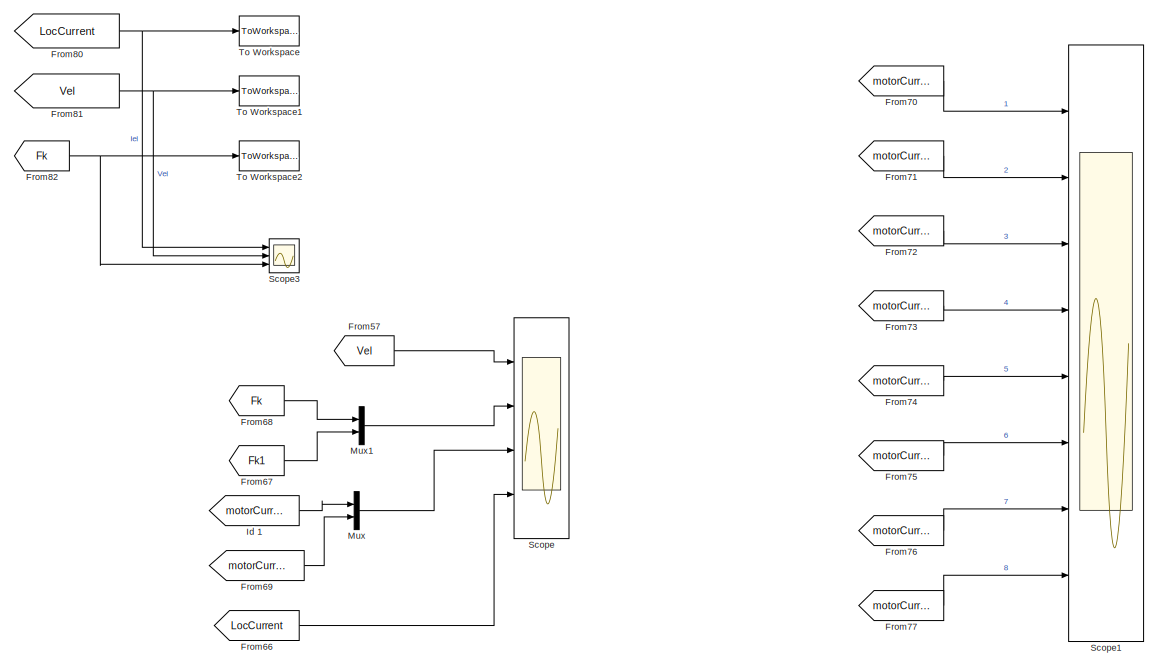
[diagram: root canvas - part 1/7, top right region]
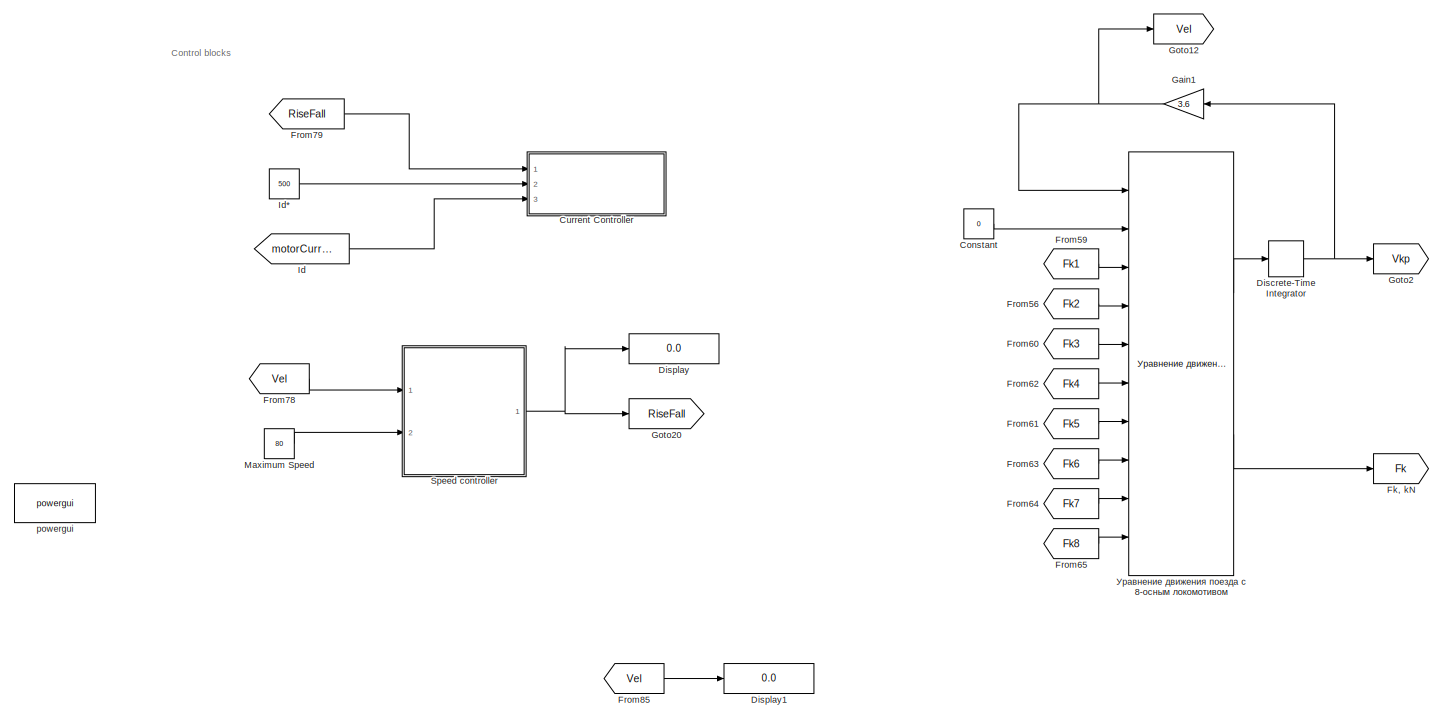
[diagram: root canvas - part 2/7, top left region]
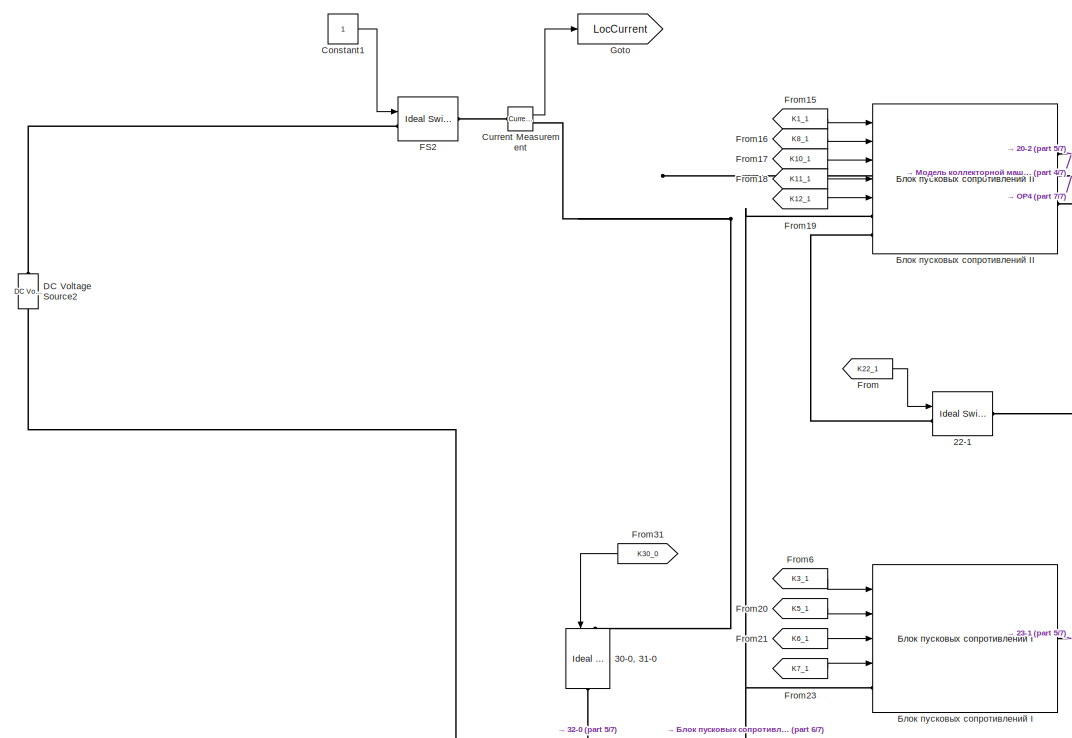
[diagram: root canvas - part 3/7, middle left region]
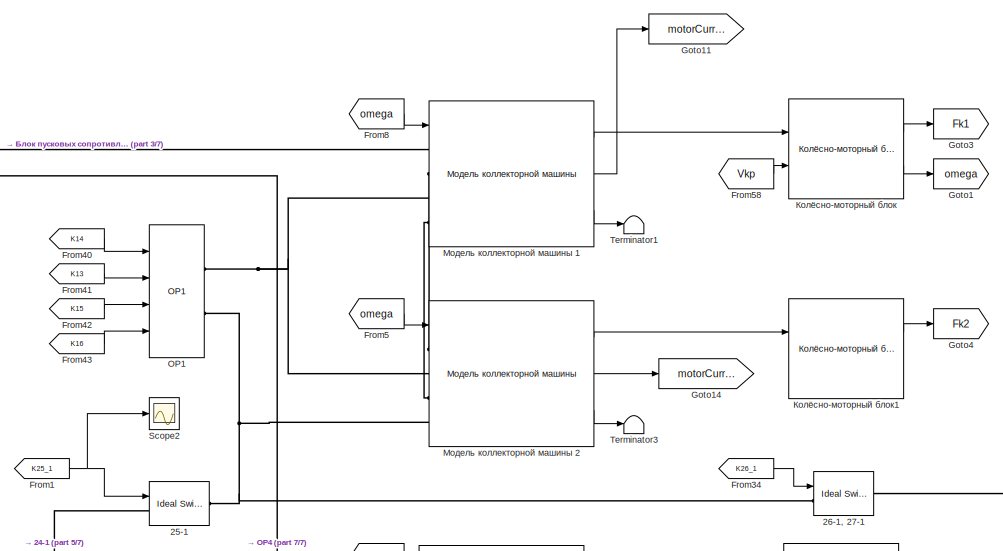
[diagram: root canvas - part 4/7, top right region]
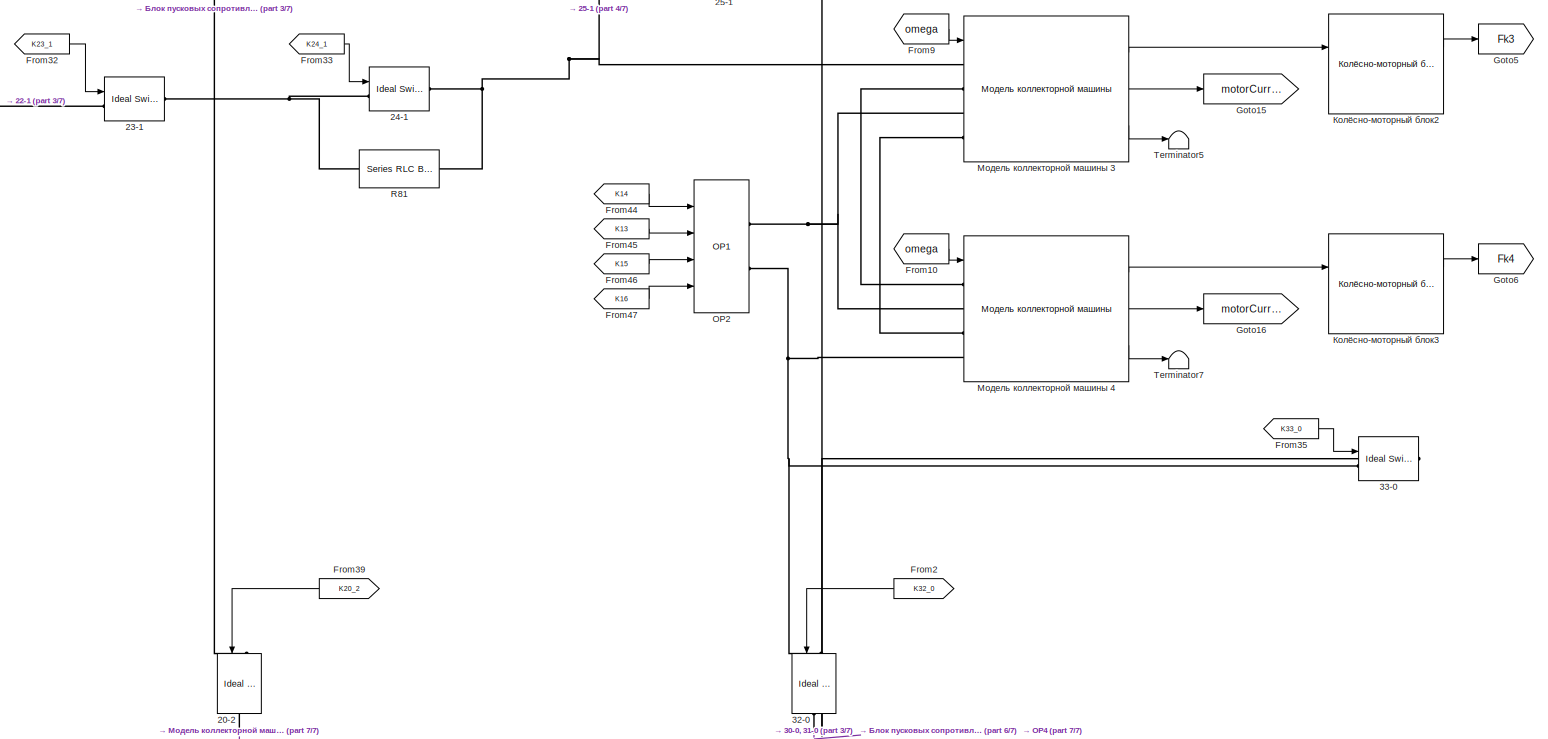
[diagram: root canvas - part 5/7, central region]
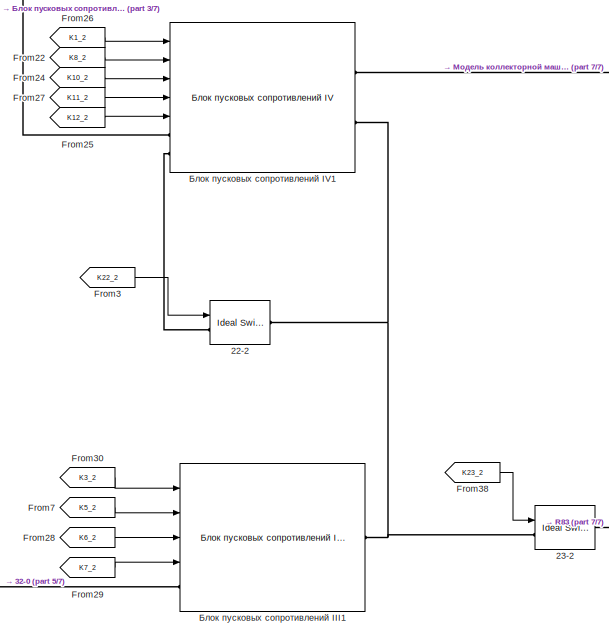
[diagram: root canvas - part 6/7, bottom center region]
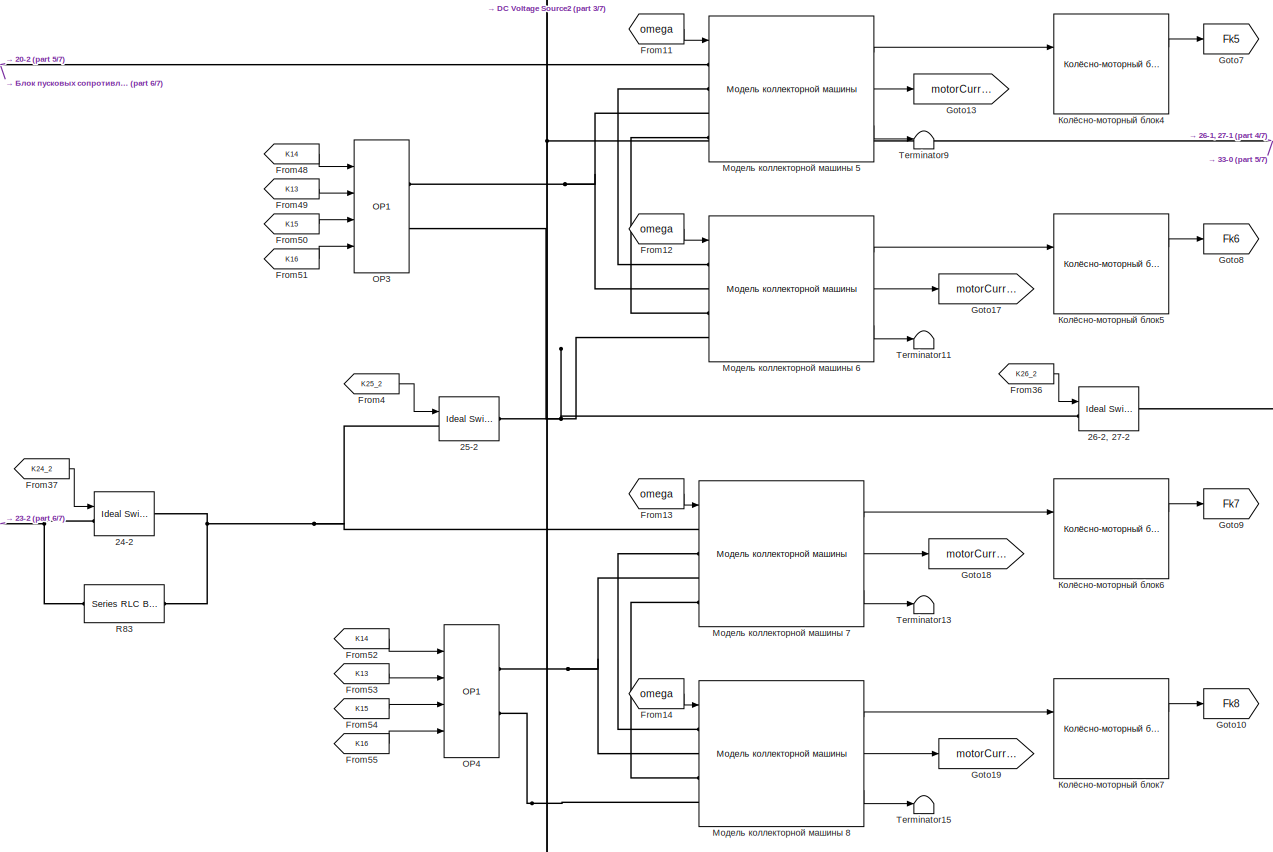
[diagram: root canvas - part 7/7, bottom right region]
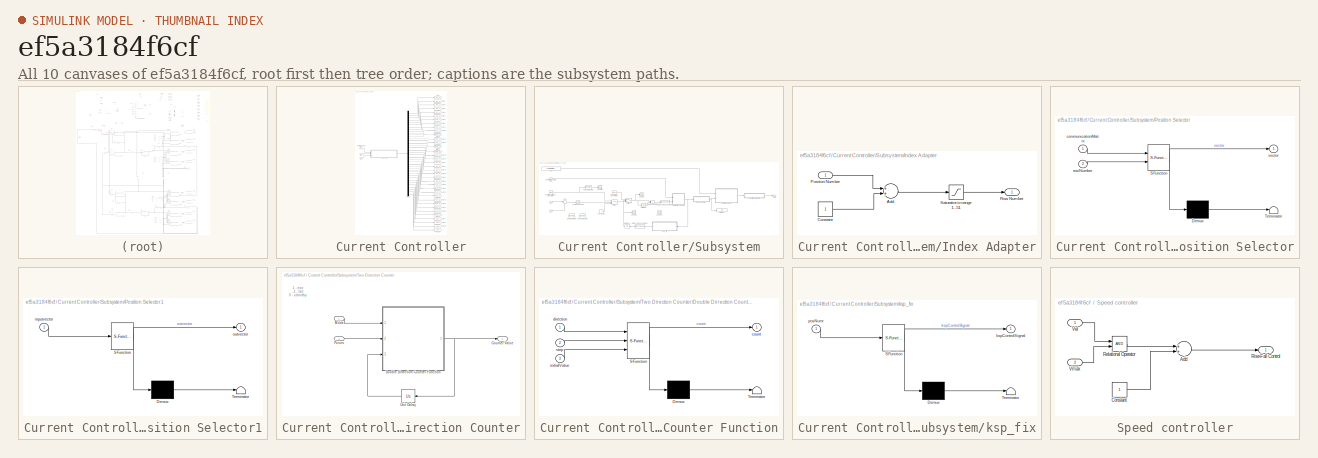
[diagram: thumbnail index - all 10 canvases of the model, root first then tree order]
MODEL slx_ef5a3184f6cf
KIND model
CONFIG AbsTol = auto
CONFIG EnableMultiTasking = off
CONFIG FixedStep = 1e-3
CONFIG MaxStep = 1e-4
CONFIG MinStep = 1e-5
CONFIG PreLoadFcn = %commutationMatrix = load('commutationMatrixFile.mat', '-ascii');\nload commutationMatrix;\n
CONFIG RelTol = auto
CONFIG SampleTimeConstraint = Unconstrained
CONFIG Solver = ode4
CONFIG SolverName = ode4
CONFIG StartTime = 0.0
CONFIG StopTime = 70
BLOCK [Reference] 20-2  REF=powerlib/Power
Electronics/Ideal Switch
  Ports = [1, 0, 0, 0, 0, 1, 1]
  SourceBlock = powerlib/Power\nElectronics/Ideal Switch
  SourceProductBaseCode = PS
  SourceProductName = Simscape Power Systems
  SourceType = Ideal Switch
BLOCK [Reference] 22-1  REF=powerlib/Power
Electronics/Ideal Switch
  Ports = [1, 0, 0, 0, 0, 1, 1]
  SourceBlock = powerlib/Power\nElectronics/Ideal Switch
  SourceProductBaseCode = PS
  SourceProductName = Simscape Power Systems
  SourceType = Ideal Switch
BLOCK [Reference] 22-2  REF=powerlib/Power
Electronics/Ideal Switch
  Ports = [1, 0, 0, 0, 0, 1, 1]
  SourceBlock = powerlib/Power\nElectronics/Ideal Switch
  SourceProductBaseCode = PS
  SourceProductName = Simscape Power Systems
  SourceType = Ideal Switch
BLOCK [Reference] 23-1  REF=powerlib/Power
Electronics/Ideal Switch
  Ports = [1, 0, 0, 0, 0, 1, 1]
  SourceBlock = powerlib/Power\nElectronics/Ideal Switch
  SourceProductBaseCode = PS
  SourceProductName = Simscape Power Systems
  SourceType = Ideal Switch
BLOCK [Reference] 23-2  REF=powerlib/Power
Electronics/Ideal Switch
  Ports = [1, 0, 0, 0, 0, 1, 1]
  SourceBlock = powerlib/Power\nElectronics/Ideal Switch
  SourceProductBaseCode = PS
  SourceProductName = Simscape Power Systems
  SourceType = Ideal Switch
BLOCK [Reference] 24-1  REF=powerlib/Power
Electronics/Ideal Switch
  Ports = [1, 0, 0, 0, 0, 1, 1]
  SourceBlock = powerlib/Power\nElectronics/Ideal Switch
  SourceProductBaseCode = PS
  SourceProductName = Simscape Power Systems
  SourceType = Ideal Switch
BLOCK [Reference] 24-2  REF=powerlib/Power
Electronics/Ideal Switch
  Ports = [1, 0, 0, 0, 0, 1, 1]
  SourceBlock = powerlib/Power\nElectronics/Ideal Switch
  SourceProductBaseCode = PS
  SourceProductName = Simscape Power Systems
  SourceType = Ideal Switch
BLOCK [Reference] 25-1  REF=powerlib/Power
Electronics/Ideal Switch
  Ports = [1, 0, 0, 0, 0, 1, 1]
  SourceBlock = powerlib/Power\nElectronics/Ideal Switch
  SourceProductBaseCode = PS
  SourceProductName = Simscape Power Systems
  SourceType = Ideal Switch
BLOCK [Reference] 25-2  REF=powerlib/Power
Electronics/Ideal Switch
  Ports = [1, 0, 0, 0, 0, 1, 1]
  SourceBlock = powerlib/Power\nElectronics/Ideal Switch
  SourceProductBaseCode = PS
  SourceProductName = Simscape Power Systems
  SourceType = Ideal Switch
BLOCK [Reference] 26-1, 27-1  REF=powerlib/Power
Electronics/Ideal Switch
  Ports = [1, 0, 0, 0, 0, 1, 1]
  SourceBlock = powerlib/Power\nElectronics/Ideal Switch
  SourceProductBaseCode = PS
  SourceProductName = Simscape Power Systems
  SourceType = Ideal Switch
BLOCK [Reference] 26-2, 27-2  REF=powerlib/Power
Electronics/Ideal Switch
  Ports = [1, 0, 0, 0, 0, 1, 1]
  SourceBlock = powerlib/Power\nElectronics/Ideal Switch
  SourceProductBaseCode = PS
  SourceProductName = Simscape Power Systems
  SourceType = Ideal Switch
BLOCK [Reference] 30-0, 31-0  REF=powerlib/Power
Electronics/Ideal Switch
  Ports = [1, 0, 0, 0, 0, 1, 1]
  SourceBlock = powerlib/Power\nElectronics/Ideal Switch
  SourceProductBaseCode = PS
  SourceProductName = Simscape Power Systems
  SourceType = Ideal Switch
BLOCK [Reference] 32-0  REF=powerlib/Power
Electronics/Ideal Switch
  Ports = [1, 0, 0, 0, 0, 1, 1]
  SourceBlock = powerlib/Power\nElectronics/Ideal Switch
  SourceProductBaseCode = PS
  SourceProductName = Simscape Power Systems
  SourceType = Ideal Switch
BLOCK [Reference] 33-0  REF=powerlib/Power
Electronics/Ideal Switch
  Ports = [1, 0, 0, 0, 0, 1, 1]
  SourceBlock = powerlib/Power\nElectronics/Ideal Switch
  SourceProductBaseCode = PS
  SourceProductName = Simscape Power Systems
  SourceType = Ideal Switch
BLOCK [Constant] Constant
  Value = 0
BLOCK [Constant] Constant1
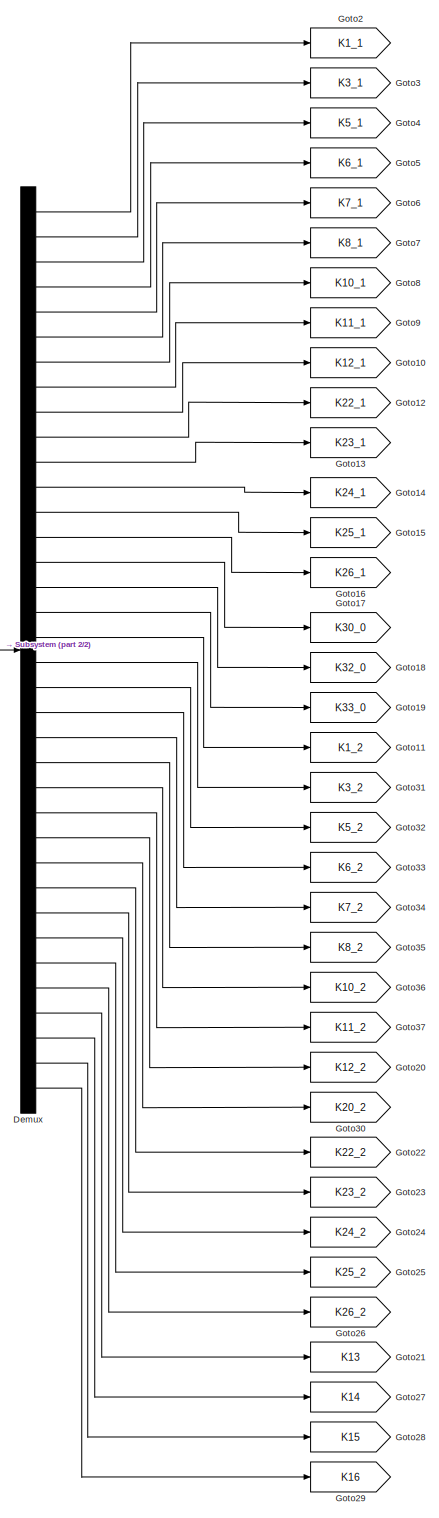
[diagram: Current Controller - part 1/2, right side, full height]
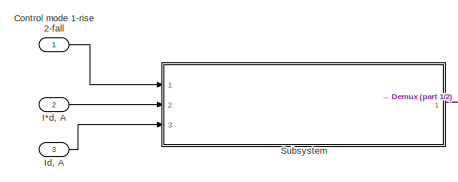
[diagram: Current Controller - part 2/2, middle left region]
BLOCK [SubSystem] Current Controller
  Ports = [3]
  RequestExecContextInheritance = off
  Variant = off
BLOCK [Inport] Current Controller/Control mode 1-rise 2-fall
  IconDisplay = Port number
BLOCK [Demux] Current Controller/Demux
  DisplayOption = bar
  Outputs = 36
  Ports = [1, 36]
BLOCK [Goto] Current Controller/Goto10
  GotoTag = K12_1
  TagVisibility = global
BLOCK [Goto] Current Controller/Goto11
  GotoTag = K1_2
  TagVisibility = global
BLOCK [Goto] Current Controller/Goto12
  GotoTag = K22_1
  TagVisibility = global
BLOCK [Goto] Current Controller/Goto13
  GotoTag = K23_1
  TagVisibility = global
BLOCK [Goto] Current Controller/Goto14
  GotoTag = K24_1
  TagVisibility = global
BLOCK [Goto] Current Controller/Goto15
  GotoTag = K25_1
  TagVisibility = global
BLOCK [Goto] Current Controller/Goto16
  GotoTag = K26_1
  TagVisibility = global
BLOCK [Goto] Current Controller/Goto17
  GotoTag = K30_0
  TagVisibility = global
BLOCK [Goto] Current Controller/Goto18
  GotoTag = K32_0
  TagVisibility = global
BLOCK [Goto] Current Controller/Goto19
  GotoTag = K33_0
  TagVisibility = global
BLOCK [Goto] Current Controller/Goto2
  GotoTag = K1_1
  TagVisibility = global
BLOCK [Goto] Current Controller/Goto20
  GotoTag = K12_2
  TagVisibility = global
BLOCK [Goto] Current Controller/Goto21
  GotoTag = K13
  TagVisibility = global
BLOCK [Goto] Current Controller/Goto22
  GotoTag = K22_2
  TagVisibility = global
BLOCK [Goto] Current Controller/Goto23
  GotoTag = K23_2
  TagVisibility = global
BLOCK [Goto] Current Controller/Goto24
  GotoTag = K24_2
  TagVisibility = global
BLOCK [Goto] Current Controller/Goto25
  GotoTag = K25_2
  TagVisibility = global
BLOCK [Goto] Current Controller/Goto26
  GotoTag = K26_2
  TagVisibility = global
BLOCK [Goto] Current Controller/Goto27
  GotoTag = K14
  TagVisibility = global
BLOCK [Goto] Current Controller/Goto28
  GotoTag = K15
  TagVisibility = global
BLOCK [Goto] Current Controller/Goto29
  GotoTag = K16
  TagVisibility = global
BLOCK [Goto] Current Controller/Goto3
  GotoTag = K3_1
  TagVisibility = global
BLOCK [Goto] Current Controller/Goto30
  GotoTag = K20_2
  TagVisibility = global
BLOCK [Goto] Current Controller/Goto31
  GotoTag = K3_2
  TagVisibility = global
BLOCK [Goto] Current Controller/Goto32
  GotoTag = K5_2
  TagVisibility = global
BLOCK [Goto] Current Controller/Goto33
  GotoTag = K6_2
  TagVisibility = global
BLOCK [Goto] Current Controller/Goto34
  GotoTag = K7_2
  TagVisibility = global
BLOCK [Goto] Current Controller/Goto35
  GotoTag = K8_2
  TagVisibility = global
BLOCK [Goto] Current Controller/Goto36
  GotoTag = K10_2
  TagVisibility = global
BLOCK [Goto] Current Controller/Goto37
  GotoTag = K11_2
  TagVisibility = global
BLOCK [Goto] Current Controller/Goto4
  GotoTag = K5_1
  TagVisibility = global
BLOCK [Goto] Current Controller/Goto5
  GotoTag = K6_1
  TagVisibility = global
BLOCK [Goto] Current Controller/Goto6
  GotoTag = K7_1
  TagVisibility = global
BLOCK [Goto] Current Controller/Goto7
  GotoTag = K8_1
  TagVisibility = global
BLOCK [Goto] Current Controller/Goto8
  GotoTag = K10_1
  TagVisibility = global
BLOCK [Goto] Current Controller/Goto9
  GotoTag = K11_1
  TagVisibility = global
BLOCK [Inport] Current Controller/I*d, A
  IconDisplay = Port number
  Port = 2
BLOCK [Inport] Current Controller/Id, A
  IconDisplay = Port number
  Port = 3
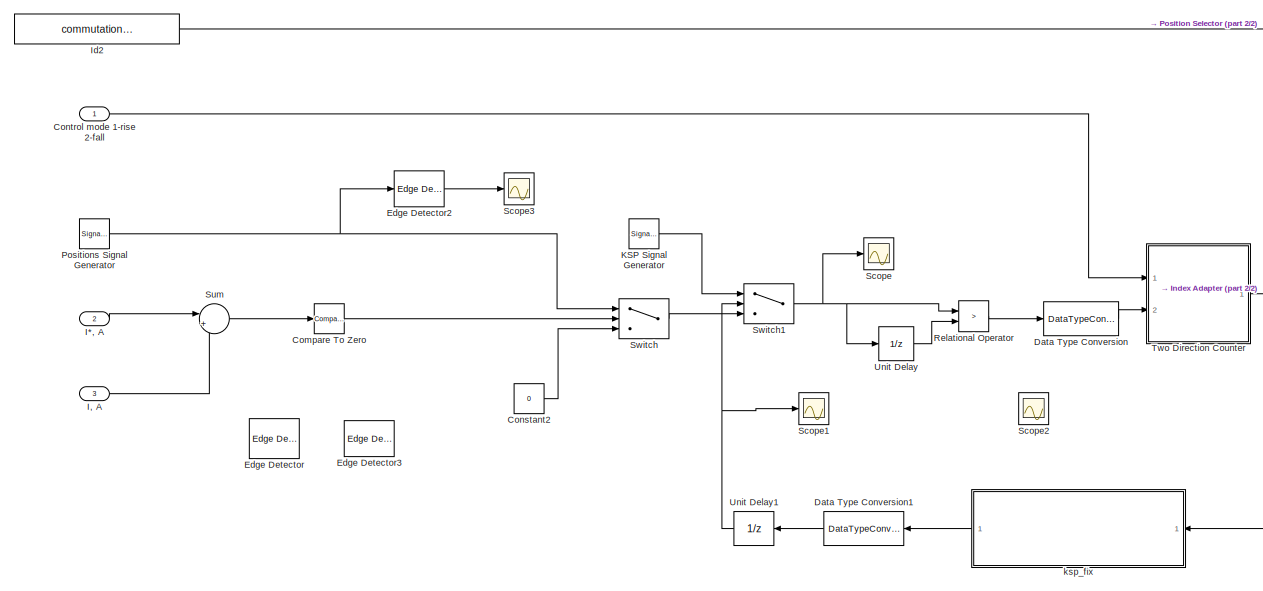
[diagram: Current Controller/Subsystem - part 1/2, left side, full height]
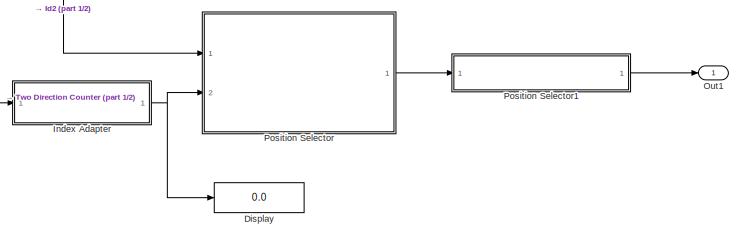
[diagram: Current Controller/Subsystem - part 2/2, middle right region]
BLOCK [SubSystem] Current Controller/Subsystem
  Ports = [3, 1]
  RequestExecContextInheritance = off
  Variant = off
BLOCK [Reference] Current Controller/Subsystem/Compare To Zero  REF=simulink/Logic and Bit
Operations/Compare
To Zero
  Ports = [1, 1]
  SourceBlock = simulink/Logic and Bit\nOperations/Compare\nTo Zero
  SourceProductBaseCode = SL
  SourceProductName = Simulink
  SourceType = Compare To Zero
BLOCK [Constant] Current Controller/Subsystem/Constant2
  Value = 0
BLOCK [Inport] Current Controller/Subsystem/Control mode 1-rise 2-fall
  IconDisplay = Port number
BLOCK [DataTypeConversion] Current Controller/Subsystem/Data Type Conversion
  OutDataTypeStr = double
  RndMeth = Floor
  SaturateOnIntegerOverflow = off
BLOCK [DataTypeConversion] Current Controller/Subsystem/Data Type Conversion1
  OutDataTypeStr = boolean
  RndMeth = Floor
  SaturateOnIntegerOverflow = off
BLOCK [Display] Current Controller/Subsystem/Display
  Decimation = 1
  Ports = [1]
BLOCK [Reference] Current Controller/Subsystem/Edge Detector  REF=dspswit3/Edge
Detector
  Ports = [1, 1]
  SourceBlock = dspswit3/Edge\nDetector
  SourceProductBaseCode = DS
  SourceProductName = DSP System Toolbox
  SourceType = Edge Detector
  UserDataPersistent = on
BLOCK [Reference] Current Controller/Subsystem/Edge Detector2  REF=powerlib_meascontrol/Logic/Edge Detector
  Ports = [1, 1]
  SourceBlock = powerlib_meascontrol/Logic/Edge Detector
  SourceProductBaseCode = PS
  SourceProductName = Simscape Power Systems
  SourceType = Edge Detector
BLOCK [Reference] Current Controller/Subsystem/Edge Detector3  REF=powerlib_meascontrol/Logic/Edge Detector
  Ports = [1, 1]
  SourceBlock = powerlib_meascontrol/Logic/Edge Detector
  SourceProductBaseCode = PS
  SourceProductName = Simscape Power Systems
  SourceType = Edge Detector
BLOCK [Inport] Current Controller/Subsystem/I*, A
  IconDisplay = Port number
  Port = 2
BLOCK [Inport] Current Controller/Subsystem/I, A
  IconDisplay = Port number
  Port = 3
BLOCK [Constant] Current Controller/Subsystem/Id2
  Value = commutationMatrix
BLOCK [SubSystem] Current Controller/Subsystem/Index Adapter
  Ports = [1, 1]
  RequestExecContextInheritance = off
  Variant = off
BLOCK [Sum] Current Controller/Subsystem/Index Adapter/Add
  InputSameDT = off
  OutDataTypeStr = Inherit: Inherit via internal rule
  Ports = [2, 1]
  SaturateOnIntegerOverflow = off
BLOCK [Constant] Current Controller/Subsystem/Index Adapter/Constant
BLOCK [Inport] Current Controller/Subsystem/Index Adapter/Position Number
  IconDisplay = Port number
BLOCK [Outport] Current Controller/Subsystem/Index Adapter/Row Number
  IconDisplay = Port number
BLOCK [Saturate] Current Controller/Subsystem/Index Adapter/Saturation in range 1 - 51
  InputPortMap = u0
  LowerLimit = 1
  Ports = [1, 1]
  UpperLimit = 52
BLOCK [SignalGenerator] Current Controller/Subsystem/KSP Signal Generator
  Frequency = 10
  Ports = [0, 1]
  WaveForm = square
BLOCK [Outport] Current Controller/Subsystem/Out1
  IconDisplay = Port number
BLOCK [SubSystem] Current Controller/Subsystem/Position Selector
  ErrorFcn = Stateflow.Translate.translate
  PermitHierarchicalResolution = ExplicitOnly
  Ports = [2, 1]
  RequestExecContextInheritance = off
  SFBlockType = MATLAB Function
  TreatAsAtomicUnit = on
  Variant = off
BLOCK [Demux] Current Controller/Subsystem/Position Selector/ Demux 
  Outputs = 1
  Ports = [1, 1]
BLOCK [S-Function] Current Controller/Subsystem/Position Selector/ SFunction 
  EnableBusSupport = on
  FunctionName = sf_sfun
  PortCounts = [2 2]
  Ports = [2, 2]
  SFcnIsStateOwnerBlock = off
  SFunctionDeploymentMode = off
  Tag = Stateflow S-Function VL10 2
BLOCK [Terminator] Current Controller/Subsystem/Position Selector/ Terminator 
BLOCK [Inport] Current Controller/Subsystem/Position Selector/communicationMatrix
  IconDisplay = Port number
BLOCK [Inport] Current Controller/Subsystem/Position Selector/rowNumber
  IconDisplay = Port number
  Port = 2
BLOCK [Outport] Current Controller/Subsystem/Position Selector/vector
  IconDisplay = Port number
BLOCK [SubSystem] Current Controller/Subsystem/Position Selector1
  ErrorFcn = Stateflow.Translate.translate
  PermitHierarchicalResolution = ExplicitOnly
  Ports = [1, 1]
  RequestExecContextInheritance = off
  SFBlockType = MATLAB Function
  TreatAsAtomicUnit = on
  Variant = off
BLOCK [Demux] Current Controller/Subsystem/Position Selector1/ Demux 
  Outputs = 1
  Ports = [1, 1]
BLOCK [S-Function] Current Controller/Subsystem/Position Selector1/ SFunction 
  EnableBusSupport = on
  FunctionName = sf_sfun
  PortCounts = [1 2]
  Ports = [1, 2]
  SFcnIsStateOwnerBlock = off
  SFunctionDeploymentMode = off
  Tag = Stateflow S-Function VL10 3
BLOCK [Terminator] Current Controller/Subsystem/Position Selector1/ Terminator 
BLOCK [Inport] Current Controller/Subsystem/Position Selector1/inputvector
  IconDisplay = Port number
BLOCK [Outport] Current Controller/Subsystem/Position Selector1/outvector
  IconDisplay = Port number
BLOCK [SignalGenerator] Current Controller/Subsystem/Positions Signal Generator
  Frequency = 5
  Ports = [0, 1]
  WaveForm = square
BLOCK [RelationalOperator] Current Controller/Subsystem/Relational Operator
  InputSameDT = off
  Operator = >
  OutDataTypeStr = boolean
  Ports = [2, 1]
  RndMeth = Simplest
BLOCK [Scope] Current Controller/Subsystem/Scope
  NumInputPorts = 1
  Ports = [1]
  ScopeSpecificationString = Simulink.scopes.TimeScopeBlockCfg('CurrentConfiguration', extmgr.ConfigurationSet(extmgr.Configuration('Core','General UI',true),extmgr.Configuration('Core','Source UI',true),extmgr.Configuration('Sources','WiredSimulink',true,'DataLoggingVariableName','ScopeData2'),extmgr.Configuration('Visuals','Time Domain',true,'SerializedDisplays',{struct('MinYLimReal','-1.25','MaxYLimReal','1.25','YLabelReal...<+1419ch>
BLOCK [Scope] Current Controller/Subsystem/Scope1
  NumInputPorts = 1
  Ports = [1]
  ScopeSpecificationString = Simulink.scopes.TimeScopeBlockCfg('CurrentConfiguration', extmgr.ConfigurationSet(extmgr.Configuration('Core','General UI',true),extmgr.Configuration('Core','Source UI',true),extmgr.Configuration('Sources','WiredSimulink',true,'DataLoggingVariableName','ScopeData3'),extmgr.Configuration('Visuals','Time Domain',true,'SerializedDisplays',{struct('MinYLimReal','-1.25','MaxYLimReal','1.25','YLabelReal...<+1423ch>
BLOCK [Scope] Current Controller/Subsystem/Scope2
  NumInputPorts = 1
  Ports = [1]
  ScopeSpecificationString = Simulink.scopes.TimeScopeBlockCfg('CurrentConfiguration', extmgr.ConfigurationSet(extmgr.Configuration('Core','General UI',true),extmgr.Configuration('Core','Source UI',true),extmgr.Configuration('Sources','WiredSimulink',true,'DataLoggingVariableName','ScopeData4'),extmgr.Configuration('Visuals','Time Domain',true,'SerializedDisplays',{struct('MinYLimReal','-1.00000','MaxYLimReal','1.00000','YLab...<+1393ch>
BLOCK [Scope] Current Controller/Subsystem/Scope3
  NumInputPorts = 1
  Ports = [1]
  ScopeSpecificationString = Simulink.scopes.TimeScopeBlockCfg('CurrentConfiguration', extmgr.ConfigurationSet(extmgr.Configuration('Core','General UI',true),extmgr.Configuration('Core','Source UI',true),extmgr.Configuration('Sources','WiredSimulink',true,'DataLoggingVariableName','ScopeData5'),extmgr.Configuration('Visuals','Time Domain',true,'SerializedDisplays',{struct('MinYLimReal','-0.125','MaxYLimReal','1.125','YLabelRe...<+1361ch>
BLOCK [Sum] Current Controller/Subsystem/Sum
  IconShape = round
  InputSameDT = off
  Inputs = |+-
  OutDataTypeStr = Inherit: Inherit via internal rule
  Ports = [2, 1]
  SaturateOnIntegerOverflow = off
BLOCK [Switch] Current Controller/Subsystem/Switch
  Criteria = u2 > Threshold
  InputSameDT = off
  SaturateOnIntegerOverflow = off
BLOCK [Switch] Current Controller/Subsystem/Switch1
  Criteria = u2 > Threshold
  InputSameDT = off
  SaturateOnIntegerOverflow = off
BLOCK [SubSystem] Current Controller/Subsystem/Two Direction Counter
  Ports = [2, 1]
  RequestExecContextInheritance = off
  Variant = off
BLOCK [Outport] Current Controller/Subsystem/Two Direction Counter/Counter Value
  IconDisplay = Port number
BLOCK [SubSystem] Current Controller/Subsystem/Two Direction Counter/Double Dirrection Counter Function
  ErrorFcn = Stateflow.Translate.translate
  PermitHierarchicalResolution = ExplicitOnly
  Ports = [3, 1]
  RequestExecContextInheritance = off
  SFBlockType = MATLAB Function
  TreatAsAtomicUnit = on
  Variant = off
BLOCK [Demux] Current Controller/Subsystem/Two Direction Counter/Double Dirrection Counter Function/ Demux 
  Outputs = 1
  Ports = [1, 1]
BLOCK [S-Function] Current Controller/Subsystem/Two Direction Counter/Double Dirrection Counter Function/ SFunction 
  EnableBusSupport = on
  FunctionName = sf_sfun
  PortCounts = [3 2]
  Ports = [3, 2]
  SFcnIsStateOwnerBlock = off
  SFunctionDeploymentMode = off
  Tag = Stateflow S-Function VL10 1
BLOCK [Terminator] Current Controller/Subsystem/Two Direction Counter/Double Dirrection Counter Function/ Terminator 
BLOCK [Outport] Current Controller/Subsystem/Two Direction Counter/Double Dirrection Counter Function/count
  IconDisplay = Port number
BLOCK [Inport] Current Controller/Subsystem/Two Direction Counter/Double Dirrection Counter Function/direction
  IconDisplay = Port number
BLOCK [Inport] Current Controller/Subsystem/Two Direction Counter/Double Dirrection Counter Function/initialValue
  IconDisplay = Port number
  Port = 3
BLOCK [Inport] Current Controller/Subsystem/Two Direction Counter/Double Dirrection Counter Function/step
  IconDisplay = Port number
  Port = 2
BLOCK [Inport] Current Controller/Subsystem/Two Direction Counter/Mode
  IconDisplay = Port number
BLOCK [Inport] Current Controller/Subsystem/Two Direction Counter/Puses
  IconDisplay = Port number
  Port = 2
BLOCK [UnitDelay] Current Controller/Subsystem/Two Direction Counter/Unit Delay
  InputProcessing = Elements as channels (sample based)
  SampleTime = -1
BLOCK [UnitDelay] Current Controller/Subsystem/Unit Delay
  InputProcessing = Elements as channels (sample based)
  SampleTime = -1
BLOCK [UnitDelay] Current Controller/Subsystem/Unit Delay1
  InputProcessing = Elements as channels (sample based)
  SampleTime = -1
BLOCK [SubSystem] Current Controller/Subsystem/ksp_fix
  ErrorFcn = Stateflow.Translate.translate
  PermitHierarchicalResolution = ExplicitOnly
  Ports = [1, 1]
  RequestExecContextInheritance = off
  SFBlockType = MATLAB Function
  TreatAsAtomicUnit = on
  Variant = off
BLOCK [Demux] Current Controller/Subsystem/ksp_fix/ Demux 
  Outputs = 1
  Ports = [1, 1]
BLOCK [S-Function] Current Controller/Subsystem/ksp_fix/ SFunction 
  EnableBusSupport = on
  FunctionName = sf_sfun
  PortCounts = [1 2]
  Ports = [1, 2]
  SFcnIsStateOwnerBlock = off
  SFunctionDeploymentMode = off
  Tag = Stateflow S-Function VL10 4
BLOCK [Terminator] Current Controller/Subsystem/ksp_fix/ Terminator 
BLOCK [Outport] Current Controller/Subsystem/ksp_fix/kspControlSignal
  IconDisplay = Port number
BLOCK [Inport] Current Controller/Subsystem/ksp_fix/posNumr
  IconDisplay = Port number
BLOCK [Reference] Current Measurement  REF=powerlib/Measurements/Current Measurement
  Ports = [0, 1, 0, 0, 0, 1, 1]
  SourceBlock = powerlib/Measurements/Current Measurement
  SourceProductBaseCode = PS
  SourceProductName = Simscape Power Systems
  SourceType = Current Measurement
  UserDataPersistent = on
BLOCK [Reference] DC Voltage Source2  REF=powerlib/Electrical
Sources/DC Voltage Source
  Ports = [0, 0, 0, 0, 0, 1, 1]
  SourceBlock = powerlib/Electrical\nSources/DC Voltage Source
  SourceProductBaseCode = PS
  SourceProductName = Simscape Power Systems
  SourceType = DC Voltage Source
BLOCK [DiscreteIntegrator] Discrete-Time Integrator
  ICPrevOutput = DiscIntNeverNeededParam
  ICPrevScaledInput = DiscIntNeverNeededParam
  InitialConditionSetting = State (most efficient)
  Ports = [1, 1]
  SampleTime = -1
BLOCK [Display] Display
  Decimation = 1
  Ports = [1]
BLOCK [Display] Display1
  Decimation = 1
  Ports = [1]
BLOCK [Reference] FS2  REF=powerlib/Power
Electronics/Ideal Switch
  Ports = [1, 0, 0, 0, 0, 1, 1]
  SourceBlock = powerlib/Power\nElectronics/Ideal Switch
  SourceProductBaseCode = PS
  SourceProductName = Simscape Power Systems
  SourceType = Ideal Switch
BLOCK [Goto] Fk, kN
  GotoTag = Fk
BLOCK [From] From
  GotoTag = K22_1
  TagVisibility = global
BLOCK [From] From1
  GotoTag = K25_1
  TagVisibility = global
BLOCK [From] From10
  GotoTag = omega
BLOCK [From] From11
  GotoTag = omega
BLOCK [From] From12
  GotoTag = omega
BLOCK [From] From13
  GotoTag = omega
BLOCK [From] From14
  GotoTag = omega
BLOCK [From] From15
  GotoTag = K1_1
  TagVisibility = global
BLOCK [From] From16
  GotoTag = K8_1
  TagVisibility = global
BLOCK [From] From17
  GotoTag = K10_1
  TagVisibility = global
BLOCK [From] From18
  GotoTag = K11_1
  TagVisibility = global
BLOCK [From] From19
  GotoTag = K12_1
  TagVisibility = global
BLOCK [From] From2
  GotoTag = K32_0
  TagVisibility = global
BLOCK [From] From20
  GotoTag = K5_1
  TagVisibility = global
BLOCK [From] From21
  GotoTag = K6_1
  TagVisibility = global
BLOCK [From] From22
  GotoTag = K8_2
  TagVisibility = global
BLOCK [From] From23
  GotoTag = K7_1
  TagVisibility = global
BLOCK [From] From24
  GotoTag = K10_2
  TagVisibility = global
BLOCK [From] From25
  GotoTag = K12_2
  TagVisibility = global
BLOCK [From] From26
  GotoTag = K1_2
  TagVisibility = global
BLOCK [From] From27
  GotoTag = K11_2
  TagVisibility = global
BLOCK [From] From28
  GotoTag = K6_2
  TagVisibility = global
BLOCK [From] From29
  GotoTag = K7_2
  TagVisibility = global
BLOCK [From] From3
  GotoTag = K22_2
  TagVisibility = global
BLOCK [From] From30
  GotoTag = K3_2
  TagVisibility = global
BLOCK [From] From31
  GotoTag = K30_0
  TagVisibility = global
BLOCK [From] From32
  GotoTag = K23_1
  TagVisibility = global
BLOCK [From] From33
  GotoTag = K24_1
  TagVisibility = global
BLOCK [From] From34
  GotoTag = K26_1
  TagVisibility = global
BLOCK [From] From35
  GotoTag = K33_0
  TagVisibility = global
BLOCK [From] From36
  GotoTag = K26_2
  TagVisibility = global
BLOCK [From] From37
  GotoTag = K24_2
  TagVisibility = global
BLOCK [From] From38
  GotoTag = K23_2
  TagVisibility = global
BLOCK [From] From39
  GotoTag = K20_2
  TagVisibility = global
BLOCK [From] From4
  GotoTag = K25_2
  TagVisibility = global
BLOCK [From] From40
  GotoTag = K14
  TagVisibility = global
BLOCK [From] From41
  GotoTag = K13
  TagVisibility = global
BLOCK [From] From42
  GotoTag = K15
  TagVisibility = global
BLOCK [From] From43
  GotoTag = K16
  TagVisibility = global
BLOCK [From] From44
  GotoTag = K14
  TagVisibility = global
BLOCK [From] From45
  GotoTag = K13
  TagVisibility = global
BLOCK [From] From46
  GotoTag = K15
  TagVisibility = global
BLOCK [From] From47
  GotoTag = K16
  TagVisibility = global
BLOCK [From] From48
  GotoTag = K14
  TagVisibility = global
BLOCK [From] From49
  GotoTag = K13
  TagVisibility = global
BLOCK [From] From5
  GotoTag = omega
BLOCK [From] From50
  GotoTag = K15
  TagVisibility = global
BLOCK [From] From51
  GotoTag = K16
  TagVisibility = global
BLOCK [From] From52
  GotoTag = K14
  TagVisibility = global
BLOCK [From] From53
  GotoTag = K13
  TagVisibility = global
BLOCK [From] From54
  GotoTag = K15
  TagVisibility = global
BLOCK [From] From55
  GotoTag = K16
  TagVisibility = global
BLOCK [From] From56
  GotoTag = Fk2
BLOCK [From] From57
  GotoTag = Vel
BLOCK [From] From58
  GotoTag = Vkp
BLOCK [From] From59
  GotoTag = Fk1
BLOCK [From] From6
  GotoTag = K3_1
  TagVisibility = global
BLOCK [From] From60
  GotoTag = Fk3
BLOCK [From] From61
  GotoTag = Fk5
BLOCK [From] From62
  GotoTag = Fk4
BLOCK [From] From63
  GotoTag = Fk6
BLOCK [From] From64
  GotoTag = Fk7
BLOCK [From] From65
  GotoTag = Fk8
BLOCK [From] From66
  GotoTag = LocCurrent
BLOCK [From] From67
  GotoTag = Fk1
BLOCK [From] From68
  GotoTag = Fk
BLOCK [From] From69
  GotoTag = motorCurrent5
BLOCK [From] From7
  GotoTag = K5_2
  TagVisibility = global
BLOCK [From] From70
  GotoTag = motorCurrent1
BLOCK [From] From71
  GotoTag = motorCurrent2
BLOCK [From] From72
  GotoTag = motorCurrent3
BLOCK [From] From73
  GotoTag = motorCurrent4
BLOCK [From] From74
  GotoTag = motorCurrent5
BLOCK [From] From75
  GotoTag = motorCurrent6
BLOCK [From] From76
  GotoTag = motorCurrent7
BLOCK [From] From77
  GotoTag = motorCurrent8
BLOCK [From] From78
  GotoTag = Vel
BLOCK [From] From79
  GotoTag = RiseFall
BLOCK [From] From8
  GotoTag = omega
BLOCK [From] From80
  GotoTag = LocCurrent
BLOCK [From] From81
  GotoTag = Vel
BLOCK [From] From82
  GotoTag = Fk
BLOCK [From] From85
  GotoTag = Vel
BLOCK [From] From9
  GotoTag = omega
BLOCK [Gain] Gain1
  Gain = 3.6
  OutDataTypeStr = Inherit: Inherit via internal rule
  ParamDataTypeStr = Inherit: Inherit via internal rule
  SaturateOnIntegerOverflow = off
BLOCK [Goto] Goto
  GotoTag = LocCurrent
BLOCK [Goto] Goto1
  GotoTag = omega
BLOCK [Goto] Goto10
  GotoTag = Fk8
BLOCK [Goto] Goto11
  GotoTag = motorCurrent1
BLOCK [Goto] Goto12
  GotoTag = Vel
BLOCK [Goto] Goto13
  GotoTag = motorCurrent5
BLOCK [Goto] Goto14
  GotoTag = motorCurrent2
BLOCK [Goto] Goto15
  GotoTag = motorCurrent3
BLOCK [Goto] Goto16
  GotoTag = motorCurrent4
BLOCK [Goto] Goto17
  GotoTag = motorCurrent6
BLOCK [Goto] Goto18
  GotoTag = motorCurrent7
BLOCK [Goto] Goto19
  GotoTag = motorCurrent8
BLOCK [Goto] Goto2
  GotoTag = Vkp
BLOCK [Goto] Goto20
  GotoTag = RiseFall
BLOCK [Goto] Goto3
  GotoTag = Fk1
BLOCK [Goto] Goto4
  GotoTag = Fk2
BLOCK [Goto] Goto5
  GotoTag = Fk3
BLOCK [Goto] Goto6
  GotoTag = Fk4
BLOCK [Goto] Goto7
  GotoTag = Fk5
BLOCK [Goto] Goto8
  GotoTag = Fk6
BLOCK [Goto] Goto9
  GotoTag = Fk7
BLOCK [From] Id 
  GotoTag = motorCurrent1
BLOCK [From] Id 1
  GotoTag = motorCurrent1
BLOCK [Constant] Id*
  Value = 500
BLOCK [Constant] Maximum Speed
  Value = 80
BLOCK [Mux] Mux
  DisplayOption = bar
  Inputs = 2
  Ports = [2, 1]
BLOCK [Mux] Mux1
  DisplayOption = bar
  Inputs = 2
  Ports = [2, 1]
BLOCK [Reference] OP1  REF=eltreclib/OP1  (lib defined in slx_39f3e03e972e, slx_510e682dd691)
  Ports = [4, 0, 0, 0, 0, 0, 2]
  SourceBlock = eltreclib/OP1
  SourceProductName = Electric Traction
BLOCK [Reference] OP2  REF=eltreclib/OP1  (lib defined in slx_39f3e03e972e, slx_510e682dd691)
  Ports = [4, 0, 0, 0, 0, 0, 2]
  SourceBlock = eltreclib/OP1
  SourceProductName = Electric Traction
BLOCK [Reference] OP3  REF=eltreclib/OP1  (lib defined in slx_39f3e03e972e, slx_510e682dd691)
  Ports = [4, 0, 0, 0, 0, 0, 2]
  SourceBlock = eltreclib/OP1
  SourceProductName = Electric Traction
BLOCK [Reference] OP4  REF=eltreclib/OP1  (lib defined in slx_39f3e03e972e, slx_510e682dd691)
  Ports = [4, 0, 0, 0, 0, 0, 2]
  SourceBlock = eltreclib/OP1
  SourceProductName = Electric Traction
BLOCK [Reference] R81  REF=powerlib/Elements/Series RLC Branch
  Ports = [0, 0, 0, 0, 0, 1, 1]
  SourceBlock = powerlib/Elements/Series RLC Branch
  SourceProductBaseCode = PS
  SourceProductName = Simscape Power Systems
  SourceType = Series RLC Branch
BLOCK [Reference] R83  REF=powerlib/Elements/Series RLC Branch
  Ports = [0, 0, 0, 0, 0, 1, 1]
  SourceBlock = powerlib/Elements/Series RLC Branch
  SourceProductBaseCode = PS
  SourceProductName = Simscape Power Systems
  SourceType = Series RLC Branch
BLOCK [Scope] Scope
  NumInputPorts = 4
  Ports = [4]
  ScopeSpecificationString = Simulink.scopes.TimeScopeBlockCfg('CurrentConfiguration', extmgr.ConfigurationSet(extmgr.Configuration('Core','General UI',true),extmgr.Configuration('Core','Source UI',true),extmgr.Configuration('Sources','WiredSimulink',true),extmgr.Configuration('Visuals','Time Domain',true,'SerializedDisplays',{struct('MinYLimReal','-8.80913','MaxYLimReal','79.2466','YLabelReal','','MinYLimMag','0.00000','MaxY...<+3595ch>
BLOCK [Scope] Scope1
  NumInputPorts = 8
  Ports = [8]
  ScopeSpecificationString = Simulink.scopes.TimeScopeBlockCfg('CurrentConfiguration', extmgr.ConfigurationSet(extmgr.Configuration('Core','General UI',true),extmgr.Configuration('Core','Source UI',true),extmgr.Configuration('Sources','WiredSimulink',true,'DataLoggingVariableName','ScopeData1'),extmgr.Configuration('Visuals','Time Domain',true,'SerializedDisplays',{struct('MinYLimReal','-80.57203','MaxYLimReal','724.4862','YL...<+6201ch>
BLOCK [Scope] Scope2
  NumInputPorts = 1
  Ports = [1]
  ScopeSpecificationString = Simulink.scopes.TimeScopeBlockCfg('CurrentConfiguration', extmgr.ConfigurationSet(extmgr.Configuration('Core','General UI',true),extmgr.Configuration('Core','Source UI',true),extmgr.Configuration('Sources','WiredSimulink',true,'DataLoggingVariableName','ScopeData2'),extmgr.Configuration('Visuals','Time Domain',true,'SerializedDisplays',{struct('MinYLimReal','-1.00000','MaxYLimReal','1.00000','YLab...<+1397ch>
BLOCK [Scope] Scope3
  NumInputPorts = 3
  Ports = [3]
  ScopeSpecificationString = Simulink.scopes.TimeScopeBlockCfg('CurrentConfiguration', extmgr.ConfigurationSet(extmgr.Configuration('Core','General UI',true),extmgr.Configuration('Core','Source UI',true),extmgr.Configuration('Sources','WiredSimulink',true,'DataLoggingVariableName','ScopeData1'),extmgr.Configuration('Visuals','Time Domain',true,'SerializedDisplays',{struct('MinYLimReal','-326.00604','MaxYLimReal','2934.08042',...<+2793ch>
BLOCK [SubSystem] Speed controller
  Ports = [2, 1]
  RequestExecContextInheritance = off
  Variant = off
BLOCK [Sum] Speed controller/Add
  InputSameDT = off
  OutDataTypeStr = Inherit: Inherit via internal rule
  Ports = [2, 1]
  SaturateOnIntegerOverflow = off
BLOCK [Constant] Speed controller/Constant
BLOCK [RelationalOperator] Speed controller/Relational Operator
  InputSameDT = off
  OutDataTypeStr = boolean
  Ports = [2, 1]
  RndMeth = Simplest
BLOCK [Outport] Speed controller/Rise-Fall Control
  IconDisplay = Port number
BLOCK [Inport] Speed controller/Vel
  IconDisplay = Port number
BLOCK [Inport] Speed controller/Vmax
  IconDisplay = Port number
  Port = 2
BLOCK [Terminator] Terminator1
BLOCK [Terminator] Terminator11
BLOCK [Terminator] Terminator13
BLOCK [Terminator] Terminator15
BLOCK [Terminator] Terminator3
BLOCK [Terminator] Terminator5
BLOCK [Terminator] Terminator7
BLOCK [Terminator] Terminator9
BLOCK [ToWorkspace] To Workspace
  Decimation = 10
  FixptAsFi = on
  MaxDataPoints = inf
  Ports = [1]
  SampleTime = -1
  Save2DSignal = 3-D array (concatenate along third dimension)
  VariableName = Iel
BLOCK [ToWorkspace] To Workspace1
  Decimation = 10
  FixptAsFi = on
  MaxDataPoints = inf
  Ports = [1]
  SampleTime = -1
  Save2DSignal = 3-D array (concatenate along third dimension)
  VariableName = Vel
BLOCK [ToWorkspace] To Workspace2
  Decimation = 10
  FixptAsFi = on
  MaxDataPoints = inf
  Ports = [1]
  SampleTime = -1
  Save2DSignal = 3-D array (concatenate along third dimension)
  VariableName = Fel
BLOCK [Reference] powergui  REF=powerlib/powergui
  Ports = []
  Priority = 1
  SourceBlock = powerlib/powergui
  SourceProductBaseCode = PS
  SourceProductName = Simscape Power Systems
  SourceType = PSB option menu block
BLOCK [Reference] Блок пусковых сопротивлений I  REF=eltreclib/Пусковые сопротивления электровоза ВЛ10/Блок пусковых  (lib defined in slx_39f3e03e972e, slx_510e682dd691)
сопротивлений I
  Ports = [4, 0, 0, 0, 0, 1, 1]
  SourceBlock = eltreclib/Пусковые сопротивления электровоза ВЛ10/Блок пусковых\nсопротивлений I
  SourceProductName = Electric Traction
BLOCK [Reference] Блок пусковых сопротивлений II  REF=eltreclib/Пусковые сопротивления электровоза ВЛ10/Блок пусковых  (lib defined in slx_39f3e03e972e, slx_510e682dd691)
сопротивлений II
  Ports = [5, 0, 0, 0, 0, 2, 2]
  SourceBlock = eltreclib/Пусковые сопротивления электровоза ВЛ10/Блок пусковых\nсопротивлений II
  SourceProductName = Electric Traction
BLOCK [Reference] Блок пусковых сопротивлений III1  REF=eltreclib/Пусковые сопротивления электровоза ВЛ10/Блок пусковых  (lib defined in slx_39f3e03e972e, slx_510e682dd691)
сопротивлений III
  Ports = [4, 0, 0, 0, 0, 1, 1]
  SourceBlock = eltreclib/Пусковые сопротивления электровоза ВЛ10/Блок пусковых\nсопротивлений III
  SourceProductName = Electric Traction
BLOCK [Reference] Блок пусковых сопротивлений IV1  REF=eltreclib/Пусковые сопротивления электровоза ВЛ10/Блок пусковых  (lib defined in slx_39f3e03e972e, slx_510e682dd691)
сопротивлений IV
  Ports = [5, 0, 0, 0, 0, 2, 2]
  SourceBlock = eltreclib/Пусковые сопротивления электровоза ВЛ10/Блок пусковых\nсопротивлений IV
  SourceProductName = Electric Traction
BLOCK [Reference] Колёсно-моторный блок  REF=eltreclib/Колёсно-моторный блок  (lib defined in slx_39f3e03e972e, slx_510e682dd691)
  Ports = [2, 2]
  SourceBlock = eltreclib/Колёсно-моторный блок
  SourceProductName = Electric Traction
BLOCK [Reference] Колёсно-моторный блок1  REF=eltreclib/Колёсно-моторный блок  (lib defined in slx_39f3e03e972e, slx_510e682dd691)
  Ports = [2, 2]
  SourceBlock = eltreclib/Колёсно-моторный блок
  SourceProductName = Electric Traction
BLOCK [Reference] Колёсно-моторный блок2  REF=eltreclib/Колёсно-моторный блок  (lib defined in slx_39f3e03e972e, slx_510e682dd691)
  Ports = [2, 2]
  SourceBlock = eltreclib/Колёсно-моторный блок
  SourceProductName = Electric Traction
BLOCK [Reference] Колёсно-моторный блок3  REF=eltreclib/Колёсно-моторный блок  (lib defined in slx_39f3e03e972e, slx_510e682dd691)
  Ports = [2, 2]
  SourceBlock = eltreclib/Колёсно-моторный блок
  SourceProductName = Electric Traction
BLOCK [Reference] Колёсно-моторный блок4  REF=eltreclib/Колёсно-моторный блок  (lib defined in slx_39f3e03e972e, slx_510e682dd691)
  Ports = [2, 2]
  SourceBlock = eltreclib/Колёсно-моторный блок
  SourceProductName = Electric Traction
BLOCK [Reference] Колёсно-моторный блок5  REF=eltreclib/Колёсно-моторный блок  (lib defined in slx_39f3e03e972e, slx_510e682dd691)
  Ports = [2, 2]
  SourceBlock = eltreclib/Колёсно-моторный блок
  SourceProductName = Electric Traction
BLOCK [Reference] Колёсно-моторный блок6  REF=eltreclib/Колёсно-моторный блок  (lib defined in slx_39f3e03e972e, slx_510e682dd691)
  Ports = [2, 2]
  SourceBlock = eltreclib/Колёсно-моторный блок
  SourceProductName = Electric Traction
BLOCK [Reference] Колёсно-моторный блок7  REF=eltreclib/Колёсно-моторный блок  (lib defined in slx_39f3e03e972e, slx_510e682dd691)
  Ports = [2, 2]
  SourceBlock = eltreclib/Колёсно-моторный блок
  SourceProductName = Electric Traction
BLOCK [Reference] Модель коллекторной машины 1  REF=eltreclib/Модель коллекторной машины  (lib defined in slx_39f3e03e972e, slx_510e682dd691)
  Ports = [1, 3, 0, 0, 0, 4]
  SourceBlock = eltreclib/Модель коллекторной машины
  SourceProductName = Electric Traction
BLOCK [Reference] Модель коллекторной машины 2  REF=eltreclib/Модель коллекторной машины  (lib defined in slx_39f3e03e972e, slx_510e682dd691)
  Ports = [1, 3, 0, 0, 0, 4]
  SourceBlock = eltreclib/Модель коллекторной машины
  SourceProductName = Electric Traction
BLOCK [Reference] Модель коллекторной машины 3  REF=eltreclib/Модель коллекторной машины  (lib defined in slx_39f3e03e972e, slx_510e682dd691)
  Ports = [1, 3, 0, 0, 0, 4]
  SourceBlock = eltreclib/Модель коллекторной машины
  SourceProductName = Electric Traction
BLOCK [Reference] Модель коллекторной машины 4  REF=eltreclib/Модель коллекторной машины  (lib defined in slx_39f3e03e972e, slx_510e682dd691)
  Ports = [1, 3, 0, 0, 0, 4]
  SourceBlock = eltreclib/Модель коллекторной машины
  SourceProductName = Electric Traction
BLOCK [Reference] Модель коллекторной машины 5  REF=eltreclib/Модель коллекторной машины  (lib defined in slx_39f3e03e972e, slx_510e682dd691)
  Ports = [1, 3, 0, 0, 0, 4]
  SourceBlock = eltreclib/Модель коллекторной машины
  SourceProductName = Electric Traction
BLOCK [Reference] Модель коллекторной машины 6  REF=eltreclib/Модель коллекторной машины  (lib defined in slx_39f3e03e972e, slx_510e682dd691)
  Ports = [1, 3, 0, 0, 0, 4]
  SourceBlock = eltreclib/Модель коллекторной машины
  SourceProductName = Electric Traction
BLOCK [Reference] Модель коллекторной машины 7  REF=eltreclib/Модель коллекторной машины  (lib defined in slx_39f3e03e972e, slx_510e682dd691)
  Ports = [1, 3, 0, 0, 0, 4]
  SourceBlock = eltreclib/Модель коллекторной машины
  SourceProductName = Electric Traction
BLOCK [Reference] Модель коллекторной машины 8  REF=eltreclib/Модель коллекторной машины  (lib defined in slx_39f3e03e972e, slx_510e682dd691)
  Ports = [1, 3, 0, 0, 0, 4]
  SourceBlock = eltreclib/Модель коллекторной машины
  SourceProductName = Electric Traction
BLOCK [Reference] Уравнение движения поезда c 8-осным локомотивом  REF=eltreclib/Уравнение движения поезда  (lib defined in slx_39f3e03e972e, slx_510e682dd691)
c 8-осным локомотивом
  Ports = [10, 2]
  SourceBlock = eltreclib/Уравнение движения поезда\nc 8-осным локомотивом
  SourceProductName = Electric Traction
ANNOTATION (root): Control blocks
ANNOTATION Current Controller/Subsystem/Two Direction Counter: 1 - rise -1 - fall 0 - standby
LINE Constant1:1 -> FS2:1
LINE Constant:1 -> Уравнение движения поезда c 8-осным локомотивом:2
LINE Current Controller/Control mode 1-rise 2-fall:1 -> Current Controller/Subsystem:1
LINE Current Controller/Demux:1 -> Current Controller/Goto2:1
LINE Current Controller/Demux:10 -> Current Controller/Goto12:1
LINE Current Controller/Demux:11 -> Current Controller/Goto13:1
LINE Current Controller/Demux:12 -> Current Controller/Goto14:1
LINE Current Controller/Demux:13 -> Current Controller/Goto15:1
LINE Current Controller/Demux:14 -> Current Controller/Goto16:1
LINE Current Controller/Demux:15 -> Current Controller/Goto17:1
LINE Current Controller/Demux:16 -> Current Controller/Goto18:1
LINE Current Controller/Demux:17 -> Current Controller/Goto19:1
LINE Current Controller/Demux:18 -> Current Controller/Goto11:1
LINE Current Controller/Demux:19 -> Current Controller/Goto31:1
LINE Current Controller/Demux:2 -> Current Controller/Goto3:1
LINE Current Controller/Demux:20 -> Current Controller/Goto32:1
LINE Current Controller/Demux:21 -> Current Controller/Goto33:1
LINE Current Controller/Demux:22 -> Current Controller/Goto34:1
LINE Current Controller/Demux:23 -> Current Controller/Goto35:1
LINE Current Controller/Demux:24 -> Current Controller/Goto36:1
LINE Current Controller/Demux:25 -> Current Controller/Goto37:1
LINE Current Controller/Demux:26 -> Current Controller/Goto20:1
LINE Current Controller/Demux:27 -> Current Controller/Goto30:1
LINE Current Controller/Demux:28 -> Current Controller/Goto22:1
LINE Current Controller/Demux:29 -> Current Controller/Goto23:1
LINE Current Controller/Demux:3 -> Current Controller/Goto4:1
LINE Current Controller/Demux:30 -> Current Controller/Goto24:1
LINE Current Controller/Demux:31 -> Current Controller/Goto25:1
LINE Current Controller/Demux:32 -> Current Controller/Goto26:1
LINE Current Controller/Demux:33 -> Current Controller/Goto21:1
LINE Current Controller/Demux:34 -> Current Controller/Goto27:1
LINE Current Controller/Demux:35 -> Current Controller/Goto28:1
LINE Current Controller/Demux:36 -> Current Controller/Goto29:1
LINE Current Controller/Demux:4 -> Current Controller/Goto5:1
LINE Current Controller/Demux:5 -> Current Controller/Goto6:1
LINE Current Controller/Demux:6 -> Current Controller/Goto7:1
LINE Current Controller/Demux:7 -> Current Controller/Goto8:1
LINE Current Controller/Demux:8 -> Current Controller/Goto9:1
LINE Current Controller/Demux:9 -> Current Controller/Goto10:1
LINE Current Controller/I*d, A:1 -> Current Controller/Subsystem:2
LINE Current Controller/Id, A:1 -> Current Controller/Subsystem:3
LINE Current Controller/Subsystem/Compare To Zero:1 -> Current Controller/Subsystem/Switch:2
LINE Current Controller/Subsystem/Constant2:1 -> Current Controller/Subsystem/Switch:3
LINE Current Controller/Subsystem/Control mode 1-rise 2-fall:1 -> Current Controller/Subsystem/Two Direction Counter:1
LINE Current Controller/Subsystem/Data Type Conversion1:1 -> Current Controller/Subsystem/Unit Delay1:1
LINE Current Controller/Subsystem/Data Type Conversion:1 -> Current Controller/Subsystem/Two Direction Counter:2
LINE Current Controller/Subsystem/Edge Detector2:1 -> Current Controller/Subsystem/Scope3:1
LINE Current Controller/Subsystem/I*, A:1 -> Current Controller/Subsystem/Sum:1
LINE Current Controller/Subsystem/I, A:1 -> Current Controller/Subsystem/Sum:2
LINE Current Controller/Subsystem/Id2:1 -> Current Controller/Subsystem/Position Selector:1
LINE Current Controller/Subsystem/Index Adapter/Add:1 -> Current Controller/Subsystem/Index Adapter/Saturation in range 1 - 51:1
LINE Current Controller/Subsystem/Index Adapter/Constant:1 -> Current Controller/Subsystem/Index Adapter/Add:2
LINE Current Controller/Subsystem/Index Adapter/Position Number:1 -> Current Controller/Subsystem/Index Adapter/Add:1
LINE Current Controller/Subsystem/Index Adapter/Saturation in range 1 - 51:1 -> Current Controller/Subsystem/Index Adapter/Row Number:1
NET Current Controller/Subsystem/Index Adapter:1 -> Current Controller/Subsystem/Display:1, Current Controller/Subsystem/Position Selector:2
LINE Current Controller/Subsystem/KSP Signal Generator:1 -> Current Controller/Subsystem/Switch1:1
LINE Current Controller/Subsystem/Position Selector1:1 -> Current Controller/Subsystem/Out1:1
LINE Current Controller/Subsystem/Position Selector:1 -> Current Controller/Subsystem/Position Selector1:1
NET Current Controller/Subsystem/Positions Signal Generator:1 -> Current Controller/Subsystem/Edge Detector2:1, Current Controller/Subsystem/Switch:1
LINE Current Controller/Subsystem/Relational Operator:1 -> Current Controller/Subsystem/Data Type Conversion:1
LINE Current Controller/Subsystem/Sum:1 -> Current Controller/Subsystem/Compare To Zero:1
NET Current Controller/Subsystem/Switch1:1 -> Current Controller/Subsystem/Relational Operator:1, Current Controller/Subsystem/Scope:1, Current Controller/Subsystem/Unit Delay:1
LINE Current Controller/Subsystem/Switch:1 -> Current Controller/Subsystem/Switch1:3
NET Current Controller/Subsystem/Two Direction Counter/Double Dirrection Counter Function:1 -> Current Controller/Subsystem/Two Direction Counter/Counter Value:1, Current Controller/Subsystem/Two Direction Counter/Unit Delay:1
LINE Current Controller/Subsystem/Two Direction Counter/Mode:1 -> Current Controller/Subsystem/Two Direction Counter/Double Dirrection Counter Function:1
LINE Current Controller/Subsystem/Two Direction Counter/Puses:1 -> Current Controller/Subsystem/Two Direction Counter/Double Dirrection Counter Function:2
LINE Current Controller/Subsystem/Two Direction Counter/Unit Delay:1 -> Current Controller/Subsystem/Two Direction Counter/Double Dirrection Counter Function:3
NET Current Controller/Subsystem/Two Direction Counter:1 -> Current Controller/Subsystem/Index Adapter:1, Current Controller/Subsystem/ksp_fix:1
NET Current Controller/Subsystem/Unit Delay1:1 -> Current Controller/Subsystem/Scope1:1, Current Controller/Subsystem/Switch1:2
LINE Current Controller/Subsystem/Unit Delay:1 -> Current Controller/Subsystem/Relational Operator:2
LINE Current Controller/Subsystem/ksp_fix:1 -> Current Controller/Subsystem/Data Type Conversion1:1
LINE Current Controller/Subsystem:1 -> Current Controller/Demux:1
LINE Current Measurement:1 -> Goto:1
NET Discrete-Time Integrator:1 -> Gain1:1, Goto2:1
LINE From10:1 -> Модель коллекторной машины 4:1
LINE From11:1 -> Модель коллекторной машины 5:1
LINE From12:1 -> Модель коллекторной машины 6:1
LINE From13:1 -> Модель коллекторной машины 7:1
LINE From14:1 -> Модель коллекторной машины 8:1
LINE From15:1 -> Блок пусковых сопротивлений II:1
LINE From16:1 -> Блок пусковых сопротивлений II:2
LINE From17:1 -> Блок пусковых сопротивлений II:3
LINE From18:1 -> Блок пусковых сопротивлений II:4
LINE From19:1 -> Блок пусковых сопротивлений II:5
NET From1:1 -> 25-1:1, Scope2:1
LINE From20:1 -> Блок пусковых сопротивлений I:2
LINE From21:1 -> Блок пусковых сопротивлений I:3
LINE From22:1 -> Блок пусковых сопротивлений IV1:2
LINE From23:1 -> Блок пусковых сопротивлений I:4
LINE From24:1 -> Блок пусковых сопротивлений IV1:3
LINE From25:1 -> Блок пусковых сопротивлений IV1:5
LINE From26:1 -> Блок пусковых сопротивлений IV1:1
LINE From27:1 -> Блок пусковых сопротивлений IV1:4
LINE From28:1 -> Блок пусковых сопротивлений III1:3
LINE From29:1 -> Блок пусковых сопротивлений III1:4
LINE From2:1 -> 32-0:1
LINE From30:1 -> Блок пусковых сопротивлений III1:1
LINE From31:1 -> 30-0, 31-0:1
LINE From32:1 -> 23-1:1
LINE From33:1 -> 24-1:1
LINE From34:1 -> 26-1, 27-1:1
LINE From35:1 -> 33-0:1
LINE From36:1 -> 26-2, 27-2:1
LINE From37:1 -> 24-2:1
LINE From38:1 -> 23-2:1
LINE From39:1 -> 20-2:1
LINE From3:1 -> 22-2:1
LINE From40:1 -> OP1:1
LINE From41:1 -> OP1:2
LINE From42:1 -> OP1:3
LINE From43:1 -> OP1:4
LINE From44:1 -> OP2:1
LINE From45:1 -> OP2:2
LINE From46:1 -> OP2:3
LINE From47:1 -> OP2:4
LINE From48:1 -> OP3:1
LINE From49:1 -> OP3:2
LINE From4:1 -> 25-2:1
LINE From50:1 -> OP3:3
LINE From51:1 -> OP3:4
LINE From52:1 -> OP4:1
LINE From53:1 -> OP4:2
LINE From54:1 -> OP4:3
LINE From55:1 -> OP4:4
LINE From56:1 -> Уравнение движения поезда c 8-осным локомотивом:4
LINE From57:1 -> Scope:1
LINE From58:1 -> Колёсно-моторный блок:2
LINE From59:1 -> Уравнение движения поезда c 8-осным локомотивом:3
LINE From5:1 -> Модель коллекторной машины 2:1
LINE From60:1 -> Уравнение движения поезда c 8-осным локомотивом:5
LINE From61:1 -> Уравнение движения поезда c 8-осным локомотивом:7
LINE From62:1 -> Уравнение движения поезда c 8-осным локомотивом:6
LINE From63:1 -> Уравнение движения поезда c 8-осным локомотивом:8
LINE From64:1 -> Уравнение движения поезда c 8-осным локомотивом:9
LINE From65:1 -> Уравнение движения поезда c 8-осным локомотивом:10
LINE From66:1 -> Scope:4
LINE From67:1 -> Mux1:2
LINE From68:1 -> Mux1:1
LINE From69:1 -> Mux:2
LINE From6:1 -> Блок пусковых сопротивлений I:1
LINE From70:1 -> Scope1:1
LINE From71:1 -> Scope1:2
LINE From72:1 -> Scope1:3
LINE From73:1 -> Scope1:4
LINE From74:1 -> Scope1:5
LINE From75:1 -> Scope1:6
LINE From76:1 -> Scope1:7
LINE From77:1 -> Scope1:8
LINE From78:1 -> Speed controller:1
LINE From79:1 -> Current Controller:1
LINE From7:1 -> Блок пусковых сопротивлений III1:2
NET From80:1 -> Scope3:1, To Workspace:1
NET From81:1 -> Scope3:2, To Workspace1:1
NET From82:1 -> Scope3:3, To Workspace2:1
LINE From85:1 -> Display1:1
LINE From8:1 -> Модель коллекторной машины 1:1
LINE From9:1 -> Модель коллекторной машины 3:1
LINE From:1 -> 22-1:1
NET Gain1:1 -> Goto12:1, Уравнение движения поезда c 8-осным локомотивом:1
LINE Id 1:1 -> Mux:1
LINE Id :1 -> Current Controller:3
LINE Id*:1 -> Current Controller:2
LINE Maximum Speed:1 -> Speed controller:2
LINE Mux1:1 -> Scope:2
LINE Mux:1 -> Scope:3
LINE Speed controller/Add:1 -> Speed controller/Rise-Fall Control:1
LINE Speed controller/Constant:1 -> Speed controller/Add:2
LINE Speed controller/Relational Operator:1 -> Speed controller/Add:1
LINE Speed controller/Vel:1 -> Speed controller/Relational Operator:1
LINE Speed controller/Vmax:1 -> Speed controller/Relational Operator:2
NET Speed controller:1 -> Display:1, Goto20:1
LINE Колёсно-моторный блок1:1 -> Goto4:1
LINE Колёсно-моторный блок2:1 -> Goto5:1
LINE Колёсно-моторный блок3:1 -> Goto6:1
LINE Колёсно-моторный блок4:1 -> Goto7:1
LINE Колёсно-моторный блок5:1 -> Goto8:1
LINE Колёсно-моторный блок6:1 -> Goto9:1
LINE Колёсно-моторный блок7:1 -> Goto10:1
LINE Колёсно-моторный блок:1 -> Goto3:1
LINE Колёсно-моторный блок:2 -> Goto1:1
LINE Модель коллекторной машины 1:1 -> Колёсно-моторный блок:1
LINE Модель коллекторной машины 1:2 -> Goto11:1
LINE Модель коллекторной машины 1:3 -> Terminator1:1
LINE Модель коллекторной машины 2:1 -> Колёсно-моторный блок1:1
LINE Модель коллекторной машины 2:2 -> Goto14:1
LINE Модель коллекторной машины 2:3 -> Terminator3:1
LINE Модель коллекторной машины 3:1 -> Колёсно-моторный блок2:1
LINE Модель коллекторной машины 3:2 -> Goto15:1
LINE Модель коллекторной машины 3:3 -> Terminator5:1
LINE Модель коллекторной машины 4:1 -> Колёсно-моторный блок3:1
LINE Модель коллекторной машины 4:2 -> Goto16:1
LINE Модель коллекторной машины 4:3 -> Terminator7:1
LINE Модель коллекторной машины 5:1 -> Колёсно-моторный блок4:1
LINE Модель коллекторной машины 5:2 -> Goto13:1
LINE Модель коллекторной машины 5:3 -> Terminator9:1
LINE Модель коллекторной машины 6:1 -> Колёсно-моторный блок5:1
LINE Модель коллекторной машины 6:2 -> Goto17:1
LINE Модель коллекторной машины 6:3 -> Terminator11:1
LINE Модель коллекторной машины 7:1 -> Колёсно-моторный блок6:1
LINE Модель коллекторной машины 7:2 -> Goto18:1
LINE Модель коллекторной машины 7:3 -> Terminator13:1
LINE Модель коллекторной машины 8:1 -> Колёсно-моторный блок7:1
LINE Модель коллекторной машины 8:2 -> Goto19:1
LINE Модель коллекторной машины 8:3 -> Terminator15:1
LINE Уравнение движения поезда c 8-осным локомотивом:1 -> Discrete-Time Integrator:1
LINE Уравнение движения поезда c 8-осным локомотивом:2 -> Fk, kN:1
PNET net1: 20-2:LConn1 -- Блок пусковых сопротивлений II:RConn1 -- Модель коллекторной машины 1:LConn1
PNET net2: 20-2:RConn1 -- Блок пусковых сопротивлений IV1:RConn1 -- Модель коллекторной машины 5:LConn1
PLINE 22-1:LConn1 -- Блок пусковых сопротивлений II:LConn2
PNET net3: 22-1:RConn1 -- 23-1:LConn1 -- Блок пусковых сопротивлений I:RConn1 -- Блок пусковых сопротивлений II:RConn2
PLINE 22-2:LConn1 -- Блок пусковых сопротивлений IV1:LConn2
PNET net4: 22-2:RConn1 -- 23-2:LConn1 -- Блок пусковых сопротивлений III1:RConn1 -- Блок пусковых сопротивлений IV1:RConn2
PNET net5: 23-1:RConn1 -- 24-1:LConn1 -- R81:LConn1
PNET net6: 23-2:RConn1 -- 24-2:LConn1 -- R83:LConn1
PNET net7: 24-1:RConn1 -- 25-1:LConn1 -- R81:RConn1 -- Модель коллекторной машины 3:LConn1
PNET net8: 24-2:RConn1 -- 25-2:LConn1 -- R83:RConn1 -- Модель коллекторной машины 7:LConn1
PNET net9: 25-1:RConn1 -- 26-1, 27-1:LConn1 -- OP1:RConn2 -- Модель коллекторной машины 2:LConn4
PNET net10: 25-2:RConn1 -- 26-2, 27-2:LConn1 -- OP3:RConn2 -- Модель коллекторной машины 6:LConn4
PNET net11: 26-1, 27-1:RConn1 -- 26-2, 27-2:RConn1 -- 33-0:RConn1 -- DC Voltage Source2:LConn1 -- OP4:RConn2 -- Модель коллекторной машины 8:LConn4
PNET net12: 30-0, 31-0:LConn1 -- Current Measurement:RConn1 -- Блок пусковых сопротивлений I:LConn1 -- Блок пусковых сопротивлений II:LConn1 -- Блок пусковых сопротивлений IV1:LConn1
PNET net13: 30-0, 31-0:RConn1 -- 32-0:RConn1 -- Блок пусковых сопротивлений III1:LConn1
PNET net14: 32-0:LConn1 -- 33-0:LConn1 -- OP2:RConn2 -- Модель коллекторной машины 4:LConn4
PLINE Current Measurement:LConn1 -- FS2:RConn1
PLINE DC Voltage Source2:RConn1 -- FS2:LConn1
PNET net15: OP1:RConn1 -- Модель коллекторной машины 1:LConn3 -- Модель коллекторной машины 2:LConn2
PNET net16: OP2:RConn1 -- Модель коллекторной машины 3:LConn3 -- Модель коллекторной машины 4:LConn2
PNET net17: OP3:RConn1 -- Модель коллекторной машины 5:LConn3 -- Модель коллекторной машины 6:LConn2
PNET net18: OP4:RConn1 -- Модель коллекторной машины 7:LConn3 -- Модель коллекторной машины 8:LConn2
PLINE Модель коллекторной машины 1:LConn2 -- Модель коллекторной машины 2:LConn1
PLINE Модель коллекторной машины 1:LConn4 -- Модель коллекторной машины 2:LConn3
PLINE Модель коллекторной машины 3:LConn2 -- Модель коллекторной машины 4:LConn1
PLINE Модель коллекторной машины 3:LConn4 -- Модель коллекторной машины 4:LConn3
PLINE Модель коллекторной машины 5:LConn2 -- Модель коллекторной машины 6:LConn1
PLINE Модель коллекторной машины 5:LConn4 -- Модель коллекторной машины 6:LConn3
PLINE Модель коллекторной машины 7:LConn2 -- Модель коллекторной машины 8:LConn1
PLINE Модель коллекторной машины 7:LConn4 -- Модель коллекторной машины 8:LConn3
note: NET lines group one-source signal fan-out (src -> all destinations, sorted); 1:1 wires keep LINE; PNET lines group multi-terminal physical nets as a canonical sorted terminal list (undirected conserving connections); 2-terminal nets keep the pairwise PLINE form
CHART Current Controller/Subsystem/Two Direction Counter/Double Dirrection Counter Function states=1 transitions=1
  STATE_LABEL 'eML_blk_kernel()'
  STATE_LABEL 'SCRIPT:\nfunction count = fcn(direction, step, initialValue)\nif direction == 1\n    count = initialValue + step;\n    if count >= 52\n        count = initialValue;\n    end\nelseif direction == 2\n    count = initialValue - step;\n    if count < 0\n        count = 0;\n    end\nelseif direction == 0\n    count = initialValue;\nelse\n    count = initialValue;\nend\n\n\n% function [count, z]= fcn(direction, step, init...<+186ch>'
CHART Current Controller/Subsystem/Position Selector states=1 transitions=1
  STATE_LABEL 'eML_blk_kernel()'
  STATE_LABEL 'SCRIPT:\nfunction vector = fcn(communicationMatrix, rowNumber)\nvector = communicationMatrix(rowNumber,:);\n'
CHART Current Controller/Subsystem/Position Selector1 states=1 transitions=1
  STATE_LABEL 'eML_blk_kernel()'
  STATE_LABEL "SCRIPT:\nfunction outvector = fcn(inputvector)\noutvector = inputvector';\n"
CHART Current Controller/Subsystem/ksp_fix states=1 transitions=1
  STATE_LABEL 'eML_blk_kernel()'
  STATE_LABEL 'SCRIPT:\nfunction kspControlSignal = fcn(posNumr)\nif (posNumr >= 17 && posNumr <=21) || (posNumr >=33 && posNumr <= 37)\n    kspControlSignal = true;\nelse\n    kspControlSignal = false;\nend\n\n'
